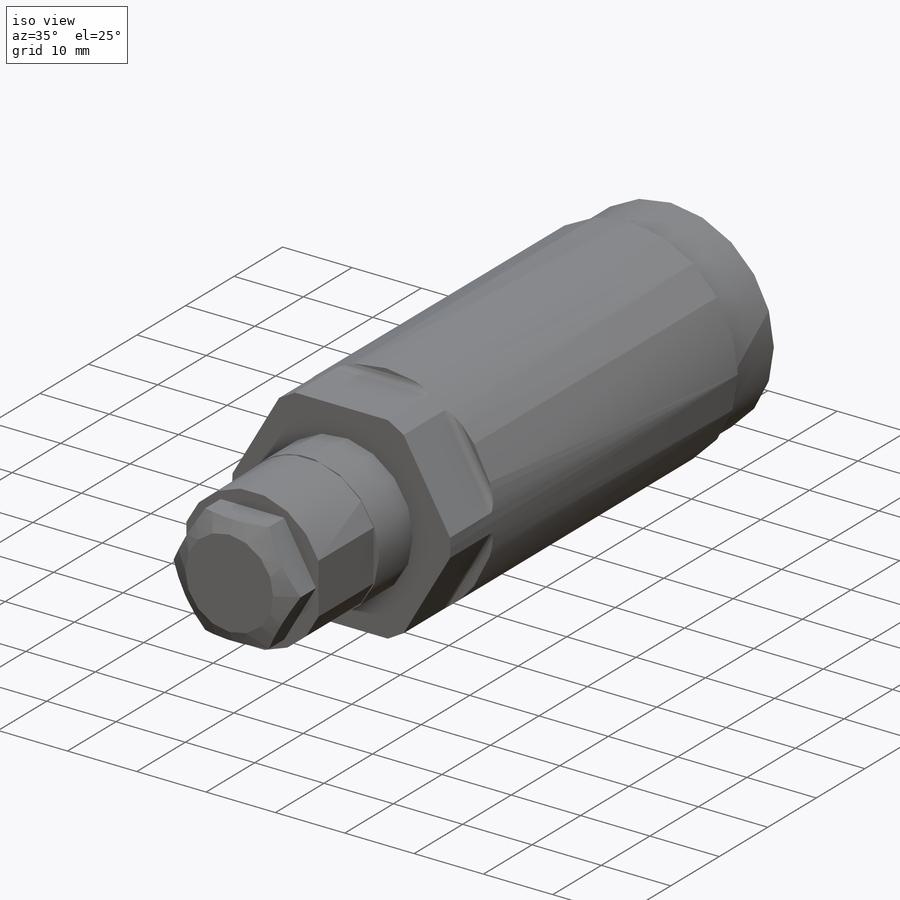
[diagram: iso view]
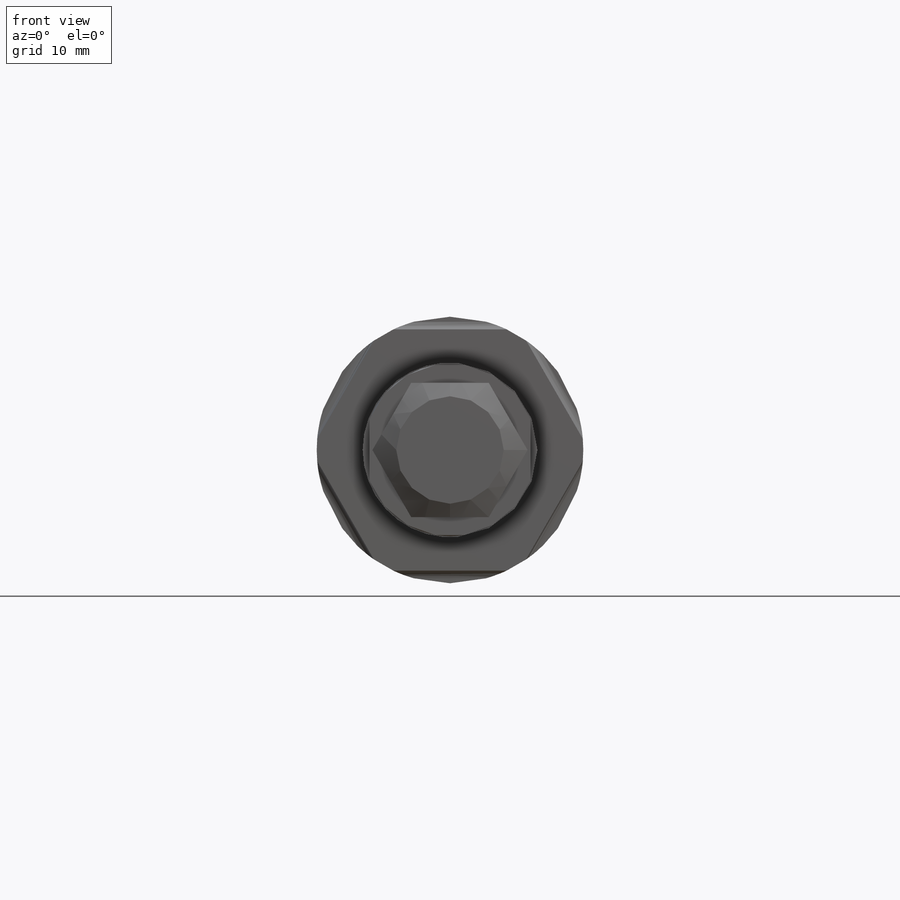
[diagram: front view]
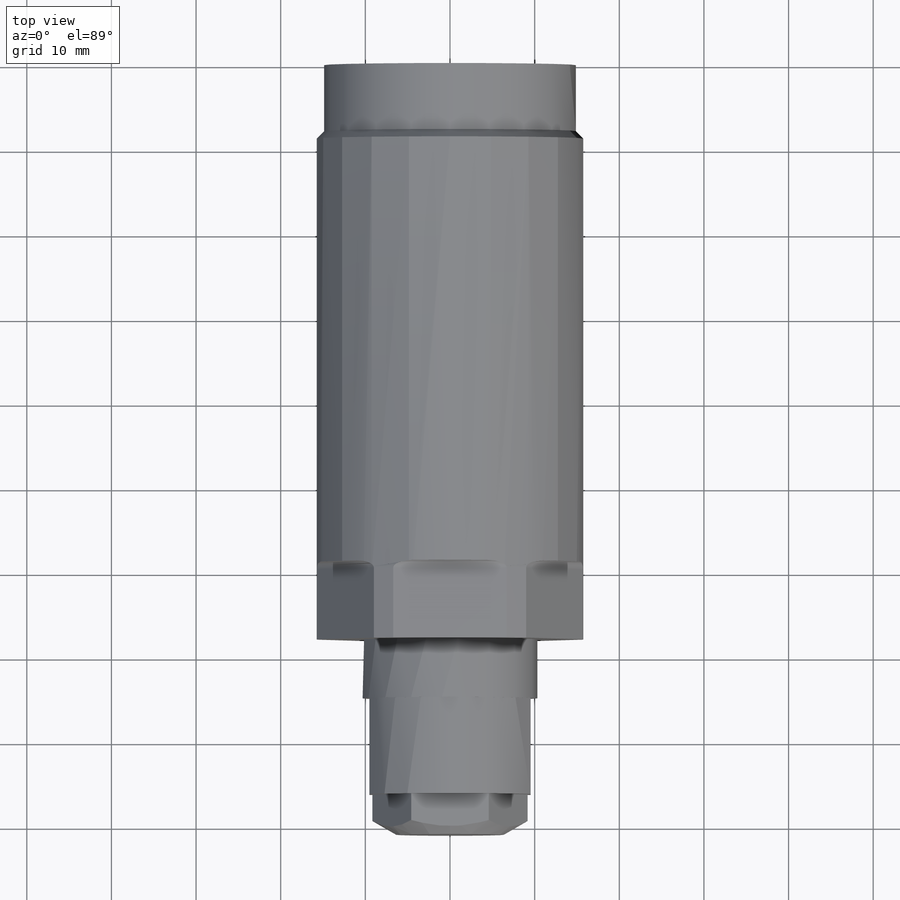
[diagram: top view]
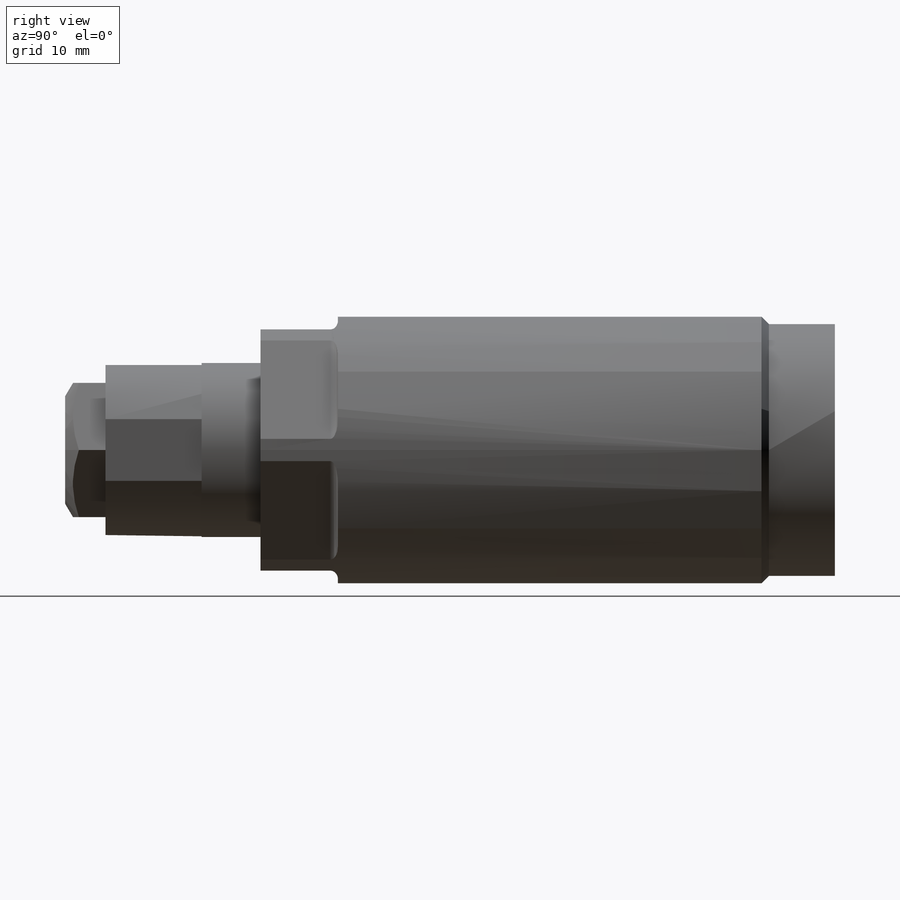
[diagram: right view]
SOLIDWORKS PART (.sldprt)
format: sldprt  version: not decoded by parser v0  size: 330,240 bytes
history: native  units: mm
features: sketch x9, plane x8, cut_revolve x4, extrude x2, cut_extrude x2, material x1, revolve x1, pattern_circular x1 (+11 scaffold rows collapsed)
feature tree (39):
  scaffold x11  (default folders/planes/origin — collapsed)
  material  "Alloy Steel"
  plane  "Plane1"
  plane  "Plane2"
  sketch  "Sketch1"  dims[D1=31.496mm]
  extrude  "Extrude1"  Depth=67.8688mm
  plane  "Plane3"
  sketch  "Sketch2"  dims[D3=0.9144mm D1=9.144mm D2=28.4988mm]
  cut_extrude  "Cut-Extrude1"  Depth=37.7952mm
  plane  "Plane13"
  sketch  "Sketch10"  dims[c1.D1=29.7434mm c1.D2=7.7978mm c1.D3=0.8763mm c2.D3=45.0deg]
  cut_revolve  "Cut-Revolve1"  Angle=360deg
  plane  "Plane14"
  sketch  "Sketch11"  dims[D1=20.6502mm D2=18.3134mm]
  revolve  "Revolve1"  Angle=360deg
  plane  "Plane15"
  sketch  "S2D0011"  dims[D1=6.35mm D2=9.0932mm]
  cut_revolve  "Cut-Revolve2"  Angle=360deg
  plane  "Plane16"
  sketch  "Sketch14"  dims[D2=10.3251mm D1=19.05mm]
  cut_extrude  "Cut-Extrude10"  Depth=11.3538mm
  sketch  "Sketch15"  dims[D1=15.875mm]
  extrude  "Extrude2"  Depth=4.7752mm
  plane  "Plane18"
  sketch  "Sketch16"  dims[c1.D1=12.7mm c1.D2=~2.815436mm c2.D2=30.0deg]
  cut_revolve  "Cut-Revolve3"  Angle=360deg
  pattern_circular  "CirPattern2"  Count=6 Angle=360deg
  sketch  "Sketch18"  dims[D1=11.3538mm D2=20.3962mm]
  cut_revolve  "Cut-Revolve4"  Angle=360deg
decode coverage: 19 of 19 modeling features carry decoded parameters
note: ~ marks probable driven/reference dimensions
note: suppression state not decoded; provenance and decode notes live in map.json
